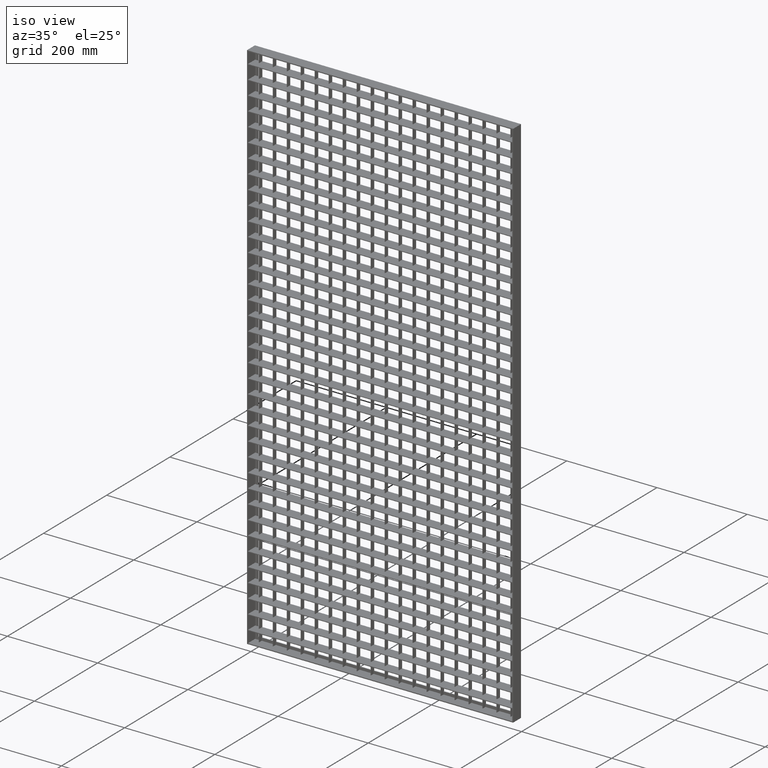
[diagram: clean part render]
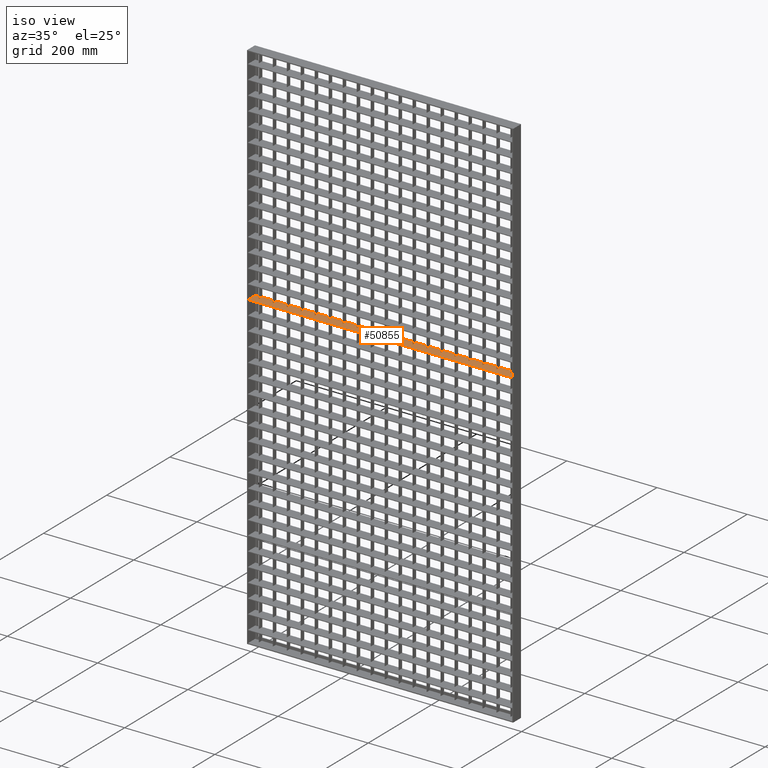
[diagram: same view with one face highlighted and labeled with its STEP entity id]
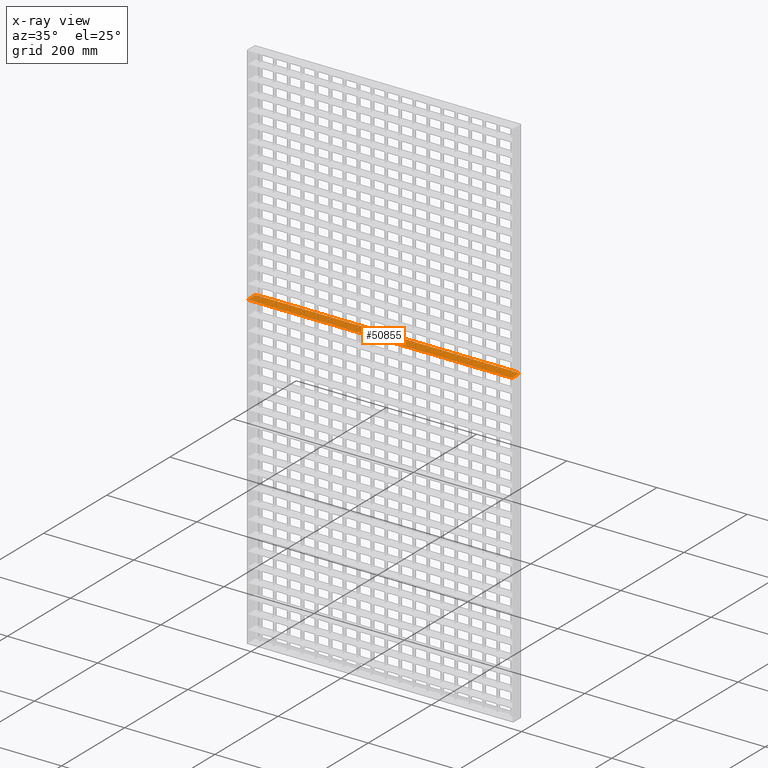
[diagram: x-ray of the same camera — body ghosted, the highlighted face saturated]
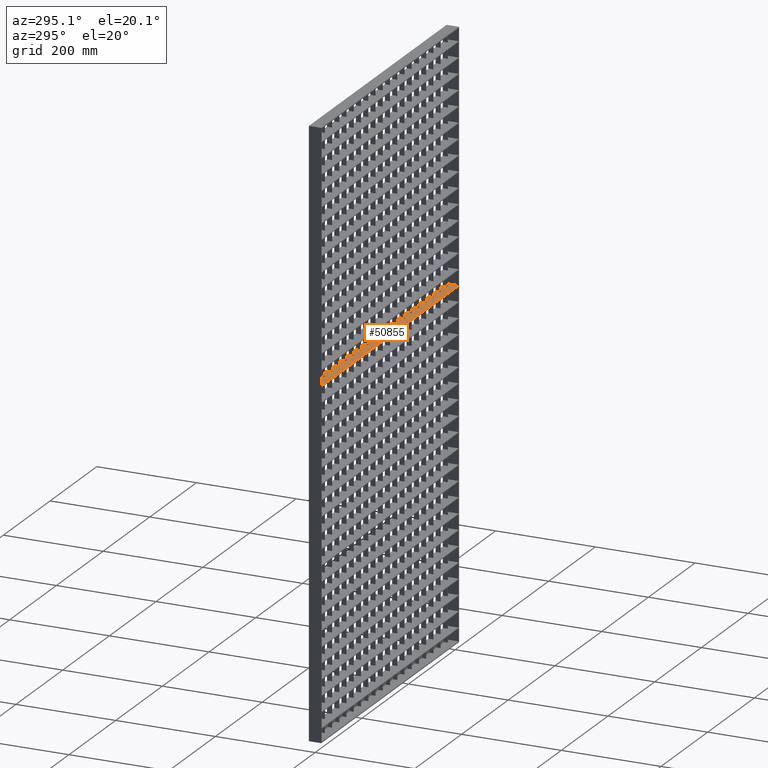
[diagram: same view with one face highlighted and labeled with its STEP entity id]
A machine part, iso view. The second image highlights one B-rep face of the part: STEP entity #50855.
The next image is the same camera in x-ray: the body ghosted, the highlighted face saturated — about 0% of this face is hidden behind the body in this view.
A second angle (auxiliary view) of the same face is appended — the face is thin or edge-on in the first view.
In plain terms, the highlighted planar face has unit normal (0, 0, 1).
Its self-contained STEP definition (entity closure, byte-faithful):
#88 = VERTEX_POINT ( 'NONE', #76579 ) ;
#162 = VERTEX_POINT ( 'NONE', #75208 ) ;
#336 = CARTESIAN_POINT ( 'NONE',  ( 15.49999999999990200, 12.50000000000000000, -499.7500000000001100 ) ) ;
#800 = DIRECTION ( 'NONE',  ( 0.0000000000000000000, -1.000000000000000000, 0.0000000000000000000 ) ) ;
#925 = DIRECTION ( 'NONE',  ( -1.000000000000000000, 4.336808689942014300E-016, 0.0000000000000000000 ) ) ;
#1141 = CARTESIAN_POINT ( 'NONE',  ( 295.5000000000000600, 12.50000000000008300, -499.7500000000001100 ) ) ;
#1150 = VERTEX_POINT ( 'NONE', #26371 ) ;
#1163 = EDGE_CURVE ( 'NONE', #67987, #16419, #25472, .T. ) ;
#1196 = CARTESIAN_POINT ( 'NONE',  ( 419.5000000000001100, 2.500000000000000000, -499.7500000000001100 ) ) ;
#1200 = LINE ( 'NONE', #48355, #42589 ) ;
#1296 = ORIENTED_EDGE ( 'NONE', *, *, #26736, .T. ) ;
#1460 = EDGE_CURVE ( 'NONE', #33713, #77060, #61834, .T. ) ;
#1477 = CARTESIAN_POINT ( 'NONE',  ( 357.5000000000001700, 12.50000000000000000, -499.7500000000002300 ) ) ;
#1503 = ORIENTED_EDGE ( 'NONE', *, *, #21099, .T. ) ;
#1507 = CARTESIAN_POINT ( 'NONE',  ( 77.50000000000001400, 2.500000000000000400, -499.7500000000001100 ) ) ;
#1532 = CARTESIAN_POINT ( 'NONE',  ( 449.5000000000001700, 12.50000000000013100, -499.7500000000001100 ) ) ;
#1583 = DIRECTION ( 'NONE',  ( -1.000000000000000000, 4.336808689942014300E-016, 0.0000000000000000000 ) ) ;
#1758 = CARTESIAN_POINT ( 'NONE',  ( 139.4999999999999400, -12.49999999999982100, -499.7500000000001100 ) ) ;
#1893 = EDGE_CURVE ( 'NONE', #83945, #88269, #67968, .T. ) ;
#1930 = VERTEX_POINT ( 'NONE', #99738 ) ;
#2245 = CARTESIAN_POINT ( 'NONE',  ( 613.0449595727362700, 2.499999999999875700, -499.7500000000001100 ) ) ;
#2548 = VECTOR ( 'NONE', #12147, 1000.000000000000000 ) ;
#2753 = CARTESIAN_POINT ( 'NONE',  ( 588.0000000000002300, 10.50000000000000500, -499.7500000000003400 ) ) ;
#2907 = VECTOR ( 'NONE', #84691, 1000.000000000000000 ) ;
#3217 = EDGE_CURVE ( 'NONE', #34726, #54694, #71489, .T. ) ;
#3611 = EDGE_CURVE ( 'NONE', #90517, #80899, #91445, .T. ) ;
#3633 = ORIENTED_EDGE ( 'NONE', *, *, #37888, .T. ) ;
#4140 = VERTEX_POINT ( 'NONE', #6028 ) ;
#4206 = ORIENTED_EDGE ( 'NONE', *, *, #91945, .F. ) ;
#4368 = LINE ( 'NONE', #63477, #67111 ) ;
#4372 = DIRECTION ( 'NONE',  ( -0.0000000000000000000, 1.000000000000000000, 0.0000000000000000000 ) ) ;
#4393 = LINE ( 'NONE', #25668, #89544 ) ;
#4404 = EDGE_CURVE ( 'NONE', #103595, #69950, #92444, .T. ) ;
#4417 = LINE ( 'NONE', #78578, #100817 ) ;
#4927 = ORIENTED_EDGE ( 'NONE', *, *, #84447, .F. ) ;
#5096 = CARTESIAN_POINT ( 'NONE',  ( 356.5000000000001700, 2.500000000000000400, -499.7500000000001100 ) ) ;
#5190 = ORIENTED_EDGE ( 'NONE', *, *, #3611, .F. ) ;
#5240 = VECTOR ( 'NONE', #5492, 1000.000000000000000 ) ;
#5492 = DIRECTION ( 'NONE',  ( -1.000000000000000000, -3.061616997868383100E-016, 0.0000000000000000000 ) ) ;
#5680 = VERTEX_POINT ( 'NONE', #32550 ) ;
#5840 = VERTEX_POINT ( 'NONE', #43736 ) ;
#5929 = DIRECTION ( 'NONE',  ( -1.000000000000000000, -3.061616997868383100E-016, 0.0000000000000000000 ) ) ;
#6028 = CARTESIAN_POINT ( 'NONE',  ( 201.4999999999999100, 2.500000000000000400, -499.7500000000001100 ) ) ;
#6208 = CARTESIAN_POINT ( 'NONE',  ( 109.4999999999999300, -12.49999999999982100, -499.7500000000001100 ) ) ;
#6213 = ORIENTED_EDGE ( 'NONE', *, *, #17076, .F. ) ;
#6378 = DIRECTION ( 'NONE',  ( 1.000000000000000000, 4.336808689942014300E-016, -0.0000000000000000000 ) ) ;
#6630 = DIRECTION ( 'NONE',  ( 0.0000000000000000000, -1.000000000000000000, 0.0000000000000000000 ) ) ;
#6847 = VERTEX_POINT ( 'NONE', #1532 ) ;
#7033 = LINE ( 'NONE', #35267, #73482 ) ;
#7039 = VECTOR ( 'NONE', #1583, 1000.000000000000000 ) ;
#7052 = ORIENTED_EDGE ( 'NONE', *, *, #12026, .F. ) ;
#7118 = EDGE_CURVE ( 'NONE', #92668, #7993, #60431, .T. ) ;
#7151 = VERTEX_POINT ( 'NONE', #49861 ) ;
#7179 = CARTESIAN_POINT ( 'NONE',  ( 140.4999999999999700, -12.49999999999982100, -499.7500000000001100 ) ) ;
#7450 = CARTESIAN_POINT ( 'NONE',  ( 326.5000000000001100, 12.50000000000000000, -499.7500000000001100 ) ) ;
#7870 = CARTESIAN_POINT ( 'NONE',  ( 202.4999999999999100, -12.49999999999982100, -499.7500000000001100 ) ) ;
#7993 = VERTEX_POINT ( 'NONE', #79960 ) ;
#7998 = VERTEX_POINT ( 'NONE', #1196 ) ;
#8184 = VECTOR ( 'NONE', #97939, 1000.000000000000000 ) ;
#8435 = VECTOR ( 'NONE', #15086, 1000.000000000000000 ) ;
#8462 = CARTESIAN_POINT ( 'NONE',  ( 480.5000000000000600, 2.500000000000000400, -499.7500000000001100 ) ) ;
#8534 = VECTOR ( 'NONE', #43412, 1000.000000000000000 ) ;
#8620 = ORIENTED_EDGE ( 'NONE', *, *, #27825, .T. ) ;
#8904 = CARTESIAN_POINT ( 'NONE',  ( 613.0449595727362700, 12.50000000000018100, -499.7500000000001100 ) ) ;
#8957 = ORIENTED_EDGE ( 'NONE', *, *, #101403, .T. ) ;
#9377 = DIRECTION ( 'NONE',  ( -0.0000000000000000000, 1.000000000000000000, 0.0000000000000000000 ) ) ;
#9599 = DIRECTION ( 'NONE',  ( -0.0000000000000000000, 1.000000000000000000, 0.0000000000000000000 ) ) ;
#9783 = CARTESIAN_POINT ( 'NONE',  ( 7.999999999999992900, 10.50000000000000500, -499.7500000000001100 ) ) ;
#9890 = CARTESIAN_POINT ( 'NONE',  ( 388.5000000000000600, -12.49999999999982100, -499.7500000000001100 ) ) ;
#9917 = CARTESIAN_POINT ( 'NONE',  ( 613.0449595727362700, 2.499999999999929400, -499.7500000000001100 ) ) ;
#10694 = VECTOR ( 'NONE', #50119, 1000.000000000000000 ) ;
#10770 = LINE ( 'NONE', #58847, #74785 ) ;
#10865 = VECTOR ( 'NONE', #16946, 1000.000000000000000 ) ;
#10962 = DIRECTION ( 'NONE',  ( -1.000000000000000000, 4.336808689942014300E-016, 0.0000000000000000000 ) ) ;
#11006 = CARTESIAN_POINT ( 'NONE',  ( 613.0449595727362700, 12.50000000000018100, -499.7500000000001100 ) ) ;
#11146 = VECTOR ( 'NONE', #78067, 1000.000000000000000 ) ;
#11236 = CARTESIAN_POINT ( 'NONE',  ( 512.5000000000002300, 12.50000000000000000, -499.7500000000002300 ) ) ;
#11289 = EDGE_CURVE ( 'NONE', #37539, #15873, #72267, .T. ) ;
#11571 = LINE ( 'NONE', #11006, #59208 ) ;
#11662 = LINE ( 'NONE', #18423, #90609 ) ;
#11805 = CARTESIAN_POINT ( 'NONE',  ( 232.4999999999999400, -12.49999999999982100, -499.7500000000001100 ) ) ;
#12006 = DIRECTION ( 'NONE',  ( -0.0000000000000000000, -1.000000000000000000, 0.0000000000000000000 ) ) ;
#12026 = EDGE_CURVE ( 'NONE', #57651, #94234, #10770, .T. ) ;
#12101 = VECTOR ( 'NONE', #58516, 1000.000000000000000 ) ;
#12147 = DIRECTION ( 'NONE',  ( 0.0000000000000000000, -1.000000000000000000, 0.0000000000000000000 ) ) ;
#12310 = ORIENTED_EDGE ( 'NONE', *, *, #31802, .T. ) ;
#12792 = VECTOR ( 'NONE', #59947, 1000.000000000000000 ) ;
#12810 = ORIENTED_EDGE ( 'NONE', *, *, #67568, .T. ) ;
#12888 = CARTESIAN_POINT ( 'NONE',  ( 170.4999999999999400, 2.499999999999999100, -499.7500000000001100 ) ) ;
#13057 = LINE ( 'NONE', #35279, #95704 ) ;
#13422 = DIRECTION ( 'NONE',  ( -1.000000000000000000, 4.336808689942014300E-016, 0.0000000000000000000 ) ) ;
#13438 = LINE ( 'NONE', #97367, #22176 ) ;
#13447 = ORIENTED_EDGE ( 'NONE', *, *, #1163, .T. ) ;
#13504 = VERTEX_POINT ( 'NONE', #24676 ) ;
#13548 = CARTESIAN_POINT ( 'NONE',  ( 574.5000000000002300, 12.50000000000000000, -499.7500000000002300 ) ) ;
#13762 = LINE ( 'NONE', #25398, #63955 ) ;
#13776 = DIRECTION ( 'NONE',  ( -1.000000000000000000, -3.061616997868383100E-016, 0.0000000000000000000 ) ) ;
#13791 = CARTESIAN_POINT ( 'NONE',  ( 233.5000000000000900, 12.50000000000006600, -499.7500000000001100 ) ) ;
#13904 = EDGE_CURVE ( 'NONE', #14112, #57651, #69308, .T. ) ;
#13954 = VERTEX_POINT ( 'NONE', #13791 ) ;
#14068 = DIRECTION ( 'NONE',  ( 0.0000000000000000000, -1.000000000000000000, 0.0000000000000000000 ) ) ;
#14112 = VERTEX_POINT ( 'NONE', #56483 ) ;
#14296 = CARTESIAN_POINT ( 'NONE',  ( 542.5000000000002300, 12.50000000000016000, -499.7500000000001100 ) ) ;
#14355 = EDGE_CURVE ( 'NONE', #93818, #102245, #22808, .T. ) ;
#14599 = CARTESIAN_POINT ( 'NONE',  ( 573.5000000000001100, 2.500000000000000400, -499.7500000000001100 ) ) ;
#14730 = LINE ( 'NONE', #27431, #20967 ) ;
#14795 = CARTESIAN_POINT ( 'NONE',  ( 201.4999999999999400, 12.50000000000000000, -499.7500000000001100 ) ) ;
#15055 = CARTESIAN_POINT ( 'NONE',  ( 582.0000000000001100, 10.50000000000000500, -499.7500000000004500 ) ) ;
#15086 = DIRECTION ( 'NONE',  ( 0.0000000000000000000, -1.000000000000000000, 0.0000000000000000000 ) ) ;
#15438 = LINE ( 'NONE', #30487, #64226 ) ;
#15748 = DIRECTION ( 'NONE',  ( -1.000000000000000000, -3.061616997868383100E-016, 0.0000000000000000000 ) ) ;
#15873 = VERTEX_POINT ( 'NONE', #101956 ) ;
#15891 = ORIENTED_EDGE ( 'NONE', *, *, #24708, .T. ) ;
#16210 = EDGE_CURVE ( 'NONE', #31259, #35626, #4417, .T. ) ;
#16361 = ORIENTED_EDGE ( 'NONE', *, *, #94720, .T. ) ;
#16419 = VERTEX_POINT ( 'NONE', #72995 ) ;
#16612 = EDGE_CURVE ( 'NONE', #44555, #64524, #70754, .T. ) ;
#16617 = DIRECTION ( 'NONE',  ( -0.0000000000000000000, 1.000000000000000000, 0.0000000000000000000 ) ) ;
#16671 = EDGE_CURVE ( 'NONE', #80899, #26791, #34316, .T. ) ;
#16677 = ORIENTED_EDGE ( 'NONE', *, *, #59960, .F. ) ;
#16809 = DIRECTION ( 'NONE',  ( 0.0000000000000000000, -1.000000000000000000, 0.0000000000000000000 ) ) ;
#16863 = VECTOR ( 'NONE', #52948, 1000.000000000000000 ) ;
#16946 = DIRECTION ( 'NONE',  ( -1.000000000000000000, 4.336808689942014300E-016, 0.0000000000000000000 ) ) ;
#17076 = EDGE_CURVE ( 'NONE', #60674, #93818, #100619, .T. ) ;
#17240 = EDGE_CURVE ( 'NONE', #16419, #73450, #83069, .T. ) ;
#17544 = VERTEX_POINT ( 'NONE', #89537 ) ;
#17597 = ORIENTED_EDGE ( 'NONE', *, *, #56202, .T. ) ;
#17625 = CARTESIAN_POINT ( 'NONE',  ( 450.5000000000001100, 12.50000000000000000, -499.7500000000002300 ) ) ;
#17688 = DIRECTION ( 'NONE',  ( -1.000000000000000000, 4.336808689942014300E-016, 0.0000000000000000000 ) ) ;
#17770 = LINE ( 'NONE', #94699, #5240 ) ;
#17862 = CARTESIAN_POINT ( 'NONE',  ( 170.4999999999999400, 12.50000000000000000, -499.7500000000001100 ) ) ;
#17899 = EDGE_CURVE ( 'NONE', #23229, #37865, #17770, .T. ) ;
#18423 = CARTESIAN_POINT ( 'NONE',  ( 613.0449595727362700, 12.50000000000018100, -499.7500000000001100 ) ) ;
#18546 = LINE ( 'NONE', #7870, #39854 ) ;
#18862 = LINE ( 'NONE', #27879, #76553 ) ;
#18927 = VECTOR ( 'NONE', #54207, 1000.000000000000000 ) ;
#18928 = EDGE_CURVE ( 'NONE', #53024, #92668, #1200, .T. ) ;
#19044 = DIRECTION ( 'NONE',  ( -0.0000000000000000000, 1.000000000000000000, 0.0000000000000000000 ) ) ;
#19209 = ORIENTED_EDGE ( 'NONE', *, *, #34361, .T. ) ;
#19246 = CARTESIAN_POINT ( 'NONE',  ( 613.0449595727362700, 12.50000000000018100, -499.7500000000001100 ) ) ;
#19488 = VERTEX_POINT ( 'NONE', #88339 ) ;
#19605 = LINE ( 'NONE', #73730, #7039 ) ;
#19785 = LINE ( 'NONE', #79075, #57390 ) ;
#20048 = EDGE_CURVE ( 'NONE', #57692, #94707, #56987, .T. ) ;
#20116 = EDGE_CURVE ( 'NONE', #57692, #88614, #77068, .T. ) ;
#20294 = CARTESIAN_POINT ( 'NONE',  ( 574.5000000000002300, 2.500000000000000000, -499.7500000000001100 ) ) ;
#20967 = VECTOR ( 'NONE', #52668, 1000.000000000000000 ) ;
#21099 = EDGE_CURVE ( 'NONE', #71629, #19488, #73081, .T. ) ;
#21185 = LINE ( 'NONE', #102591, #38750 ) ;
#21823 = CARTESIAN_POINT ( 'NONE',  ( 613.0449595727362700, 12.50000000000018100, -499.7500000000001100 ) ) ;
#22027 = DIRECTION ( 'NONE',  ( 1.000000000000000000, 4.336808689942014300E-016, -0.0000000000000000000 ) ) ;
#22081 = LINE ( 'NONE', #25757, #82176 ) ;
#22094 = CARTESIAN_POINT ( 'NONE',  ( 2.000000000000223800, -12.50000000000000700, -499.7500000000001100 ) ) ;
#22176 = VECTOR ( 'NONE', #25253, 1000.000000000000000 ) ;
#22185 = DIRECTION ( 'NONE',  ( 1.000000000000000000, 4.336808689942014300E-016, -0.0000000000000000000 ) ) ;
#22459 = CARTESIAN_POINT ( 'NONE',  ( 108.4999999999999300, -12.49999999999982100, -499.7500000000001100 ) ) ;
#22808 = LINE ( 'NONE', #26648, #12792 ) ;
#23018 = EDGE_CURVE ( 'NONE', #34619, #7998, #58778, .T. ) ;
#23022 = CARTESIAN_POINT ( 'NONE',  ( 2.000000000000002700, 10.50000000000000500, -499.7500000000001100 ) ) ;
#23038 = VECTOR ( 'NONE', #800, 1000.000000000000000 ) ;
#23229 = VERTEX_POINT ( 'NONE', #49708 ) ;
#23342 = VERTEX_POINT ( 'NONE', #90624 ) ;
#23374 = VECTOR ( 'NONE', #83225, 1000.000000000000000 ) ;
#23522 = ORIENTED_EDGE ( 'NONE', *, *, #90747, .T. ) ;
#23866 = CARTESIAN_POINT ( 'NONE',  ( 573.5000000000001100, 12.50000000000016900, -499.7500000000001100 ) ) ;
#24027 = ORIENTED_EDGE ( 'NONE', *, *, #61811, .F. ) ;
#24429 = EDGE_CURVE ( 'NONE', #102245, #86234, #96802, .T. ) ;
#24676 = CARTESIAN_POINT ( 'NONE',  ( 46.49999999999992900, 12.50000000000000000, -499.7500000000001100 ) ) ;
#24708 = EDGE_CURVE ( 'NONE', #46589, #102213, #11571, .T. ) ;
#24778 = LINE ( 'NONE', #99756, #97287 ) ;
#25117 = LINE ( 'NONE', #102131, #18927 ) ;
#25253 = DIRECTION ( 'NONE',  ( -0.0000000000000000000, 1.000000000000000000, 0.0000000000000000000 ) ) ;
#25398 = CARTESIAN_POINT ( 'NONE',  ( 78.49999999999990100, -12.49999999999982100, -499.7500000000001100 ) ) ;
#25405 = CARTESIAN_POINT ( 'NONE',  ( 139.4999999999999400, 12.50000000000000000, -499.7500000000001100 ) ) ;
#25429 = VERTEX_POINT ( 'NONE', #74271 ) ;
#25472 = LINE ( 'NONE', #2245, #31705 ) ;
#25668 = CARTESIAN_POINT ( 'NONE',  ( 264.4999999999999400, -12.49999999999982100, -499.7500000000001100 ) ) ;
#25757 = CARTESIAN_POINT ( 'NONE',  ( 201.4999999999999100, -12.49999999999982100, -499.7500000000001100 ) ) ;
#26112 = VERTEX_POINT ( 'NONE', #78125 ) ;
#26252 = VECTOR ( 'NONE', #13776, 1000.000000000000000 ) ;
#26371 = CARTESIAN_POINT ( 'NONE',  ( 543.5000000000001100, 2.500000000000000000, -499.7500000000001100 ) ) ;
#26548 = EDGE_CURVE ( 'NONE', #33713, #36396, #93720, .T. ) ;
#26579 = ORIENTED_EDGE ( 'NONE', *, *, #28122, .T. ) ;
#26648 = CARTESIAN_POINT ( 'NONE',  ( 613.0449595727362700, 2.500000000000205200, -499.7500000000001100 ) ) ;
#26736 = EDGE_CURVE ( 'NONE', #51841, #37539, #19785, .T. ) ;
#26791 = VERTEX_POINT ( 'NONE', #103243 ) ;
#26819 = DIRECTION ( 'NONE',  ( 0.0000000000000000000, -1.000000000000000000, 0.0000000000000000000 ) ) ;
#26874 = EDGE_CURVE ( 'NONE', #71449, #47499, #71172, .T. ) ;
#26904 = LINE ( 'NONE', #95718, #35512 ) ;
#26951 = DIRECTION ( 'NONE',  ( 0.0000000000000000000, -1.000000000000000000, 0.0000000000000000000 ) ) ;
#26983 = VERTEX_POINT ( 'NONE', #90594 ) ;
#27283 = DIRECTION ( 'NONE',  ( -1.000000000000000000, 0.0000000000000000000, 0.0000000000000000000 ) ) ;
#27298 = VERTEX_POINT ( 'NONE', #28929 ) ;
#27431 = CARTESIAN_POINT ( 'NONE',  ( 613.0449595727362700, 12.50000000000018100, -499.7500000000001100 ) ) ;
#27570 = ORIENTED_EDGE ( 'NONE', *, *, #90365, .T. ) ;
#27825 = EDGE_CURVE ( 'NONE', #94707, #71237, #49624, .T. ) ;
#27879 = CARTESIAN_POINT ( 'NONE',  ( 511.5000000000000600, -12.49999999999982100, -499.7500000000001100 ) ) ;
#28122 = EDGE_CURVE ( 'NONE', #74196, #101007, #45796, .T. ) ;
#28236 = CARTESIAN_POINT ( 'NONE',  ( 46.49999999999998600, 2.499999999999999100, -499.7500000000001100 ) ) ;
#28271 = VECTOR ( 'NONE', #94150, 1000.000000000000000 ) ;
#28642 = EDGE_CURVE ( 'NONE', #47499, #71629, #29499, .T. ) ;
#28648 = CARTESIAN_POINT ( 'NONE',  ( 16.50000000000007100, 12.49999999999999800, -499.7500000000001100 ) ) ;
#28792 = EDGE_CURVE ( 'NONE', #19488, #88, #45717, .T. ) ;
#28929 = CARTESIAN_POINT ( 'NONE',  ( 7.999999999999994700, 12.50000000000000500, -499.7500000000001100 ) ) ;
#28950 = ORIENTED_EDGE ( 'NONE', *, *, #75724, .F. ) ;
#29036 = VERTEX_POINT ( 'NONE', #38500 ) ;
#29132 = ORIENTED_EDGE ( 'NONE', *, *, #75062, .T. ) ;
#29499 = LINE ( 'NONE', #9890, #48340 ) ;
#29703 = EDGE_CURVE ( 'NONE', #29998, #5840, #51608, .T. ) ;
#29998 = VERTEX_POINT ( 'NONE', #89794 ) ;
#30487 = CARTESIAN_POINT ( 'NONE',  ( 357.5000000000001700, -12.49999999999982100, -499.7500000000001100 ) ) ;
#30489 = ORIENTED_EDGE ( 'NONE', *, *, #33076, .T. ) ;
#30580 = LINE ( 'NONE', #48802, #23038 ) ;
#30731 = ORIENTED_EDGE ( 'NONE', *, *, #61118, .F. ) ;
#31259 = VERTEX_POINT ( 'NONE', #28236 ) ;
#31274 = DIRECTION ( 'NONE',  ( -1.000000000000000000, 4.336808689942014300E-016, 0.0000000000000000000 ) ) ;
#31462 = CARTESIAN_POINT ( 'NONE',  ( 613.0449595727362700, 12.50000000000018100, -499.7500000000001100 ) ) ;
#31518 = VECTOR ( 'NONE', #66209, 1000.000000000000000 ) ;
#31555 = ORIENTED_EDGE ( 'NONE', *, *, #16612, .T. ) ;
#31665 = ORIENTED_EDGE ( 'NONE', *, *, #18928, .T. ) ;
#31705 = VECTOR ( 'NONE', #58983, 1000.000000000000000 ) ;
#31802 = EDGE_CURVE ( 'NONE', #49885, #53024, #24778, .T. ) ;
#31814 = CARTESIAN_POINT ( 'NONE',  ( 77.49999999999992900, 12.50000000000000000, -499.7500000000001100 ) ) ;
#32045 = EDGE_CURVE ( 'NONE', #56022, #25429, #64842, .T. ) ;
#32151 = EDGE_CURVE ( 'NONE', #53459, #71449, #78641, .T. ) ;
#32251 = DIRECTION ( 'NONE',  ( -1.000000000000000000, -3.061616997868383100E-016, 0.0000000000000000000 ) ) ;
#32388 = CARTESIAN_POINT ( 'NONE',  ( 613.0449595727362700, 2.499999999999889400, -499.7500000000001100 ) ) ;
#32536 = DIRECTION ( 'NONE',  ( 0.0000000000000000000, -1.000000000000000000, 0.0000000000000000000 ) ) ;
#32550 = CARTESIAN_POINT ( 'NONE',  ( 78.49999999999990100, 2.500000000000000400, -499.7500000000001100 ) ) ;
#32719 = ORIENTED_EDGE ( 'NONE', *, *, #41987, .T. ) ;
#33076 = EDGE_CURVE ( 'NONE', #1150, #55874, #39580, .T. ) ;
#33549 = ORIENTED_EDGE ( 'NONE', *, *, #68890, .F. ) ;
#33617 = CARTESIAN_POINT ( 'NONE',  ( 16.49999999999995700, -12.49999999999982100, -499.7500000000001100 ) ) ;
#33687 = LINE ( 'NONE', #48678, #85052 ) ;
#33713 = VERTEX_POINT ( 'NONE', #80980 ) ;
#34067 = EDGE_CURVE ( 'NONE', #26983, #1150, #78155, .T. ) ;
#34188 = VERTEX_POINT ( 'NONE', #336 ) ;
#34206 = LINE ( 'NONE', #53587, #78105 ) ;
#34316 = LINE ( 'NONE', #68754, #71946 ) ;
#34334 = CARTESIAN_POINT ( 'NONE',  ( 47.49999999999987200, -12.49999999999982100, -499.7500000000001100 ) ) ;
#34361 = EDGE_CURVE ( 'NONE', #92931, #13954, #85630, .T. ) ;
#34619 = VERTEX_POINT ( 'NONE', #45451 ) ;
#34726 = VERTEX_POINT ( 'NONE', #14599 ) ;
#34924 = DIRECTION ( 'NONE',  ( -0.0000000000000000000, 1.000000000000000000, 0.0000000000000000000 ) ) ;
#34976 = VERTEX_POINT ( 'NONE', #40818 ) ;
#35208 = CARTESIAN_POINT ( 'NONE',  ( 263.4999999999999400, 12.50000000000000000, -499.7500000000001100 ) ) ;
#35230 = LINE ( 'NONE', #8904, #94096 ) ;
#35267 = CARTESIAN_POINT ( 'NONE',  ( 171.4999999999999400, -12.49999999999982100, -499.7500000000001100 ) ) ;
#35279 = CARTESIAN_POINT ( 'NONE',  ( 294.4999999999999400, -12.49999999999982100, -499.7500000000001100 ) ) ;
#35282 = LINE ( 'NONE', #23022, #81717 ) ;
#35404 = ORIENTED_EDGE ( 'NONE', *, *, #28792, .T. ) ;
#35502 = VERTEX_POINT ( 'NONE', #31814 ) ;
#35512 = VECTOR ( 'NONE', #40770, 1000.000000000000000 ) ;
#35575 = LINE ( 'NONE', #74955, #79473 ) ;
#35626 = VERTEX_POINT ( 'NONE', #81531 ) ;
#35960 = EDGE_CURVE ( 'NONE', #5680, #36396, #13762, .T. ) ;
#36333 = CARTESIAN_POINT ( 'NONE',  ( 140.4999999999999700, 2.500000000000000400, -499.7500000000001100 ) ) ;
#36396 = VERTEX_POINT ( 'NONE', #103639 ) ;
#37247 = ORIENTED_EDGE ( 'NONE', *, *, #26548, .T. ) ;
#37291 = ORIENTED_EDGE ( 'NONE', *, *, #89215, .F. ) ;
#37453 = ORIENTED_EDGE ( 'NONE', *, *, #1460, .F. ) ;
#37539 = VERTEX_POINT ( 'NONE', #100614 ) ;
#37865 = VERTEX_POINT ( 'NONE', #7450 ) ;
#37888 = EDGE_CURVE ( 'NONE', #101007, #49885, #13438, .T. ) ;
#38030 = ORIENTED_EDGE ( 'NONE', *, *, #68951, .T. ) ;
#38391 = EDGE_CURVE ( 'NONE', #46589, #4140, #22081, .T. ) ;
#38500 = CARTESIAN_POINT ( 'NONE',  ( 511.5000000000000600, 12.50000000000014900, -499.7500000000001100 ) ) ;
#38669 = CARTESIAN_POINT ( 'NONE',  ( 357.5000000000001700, 2.500000000000000000, -499.7500000000001100 ) ) ;
#38750 = VECTOR ( 'NONE', #86843, 1000.000000000000000 ) ;
#38862 = EDGE_CURVE ( 'NONE', #17544, #1930, #89573, .T. ) ;
#39504 = CARTESIAN_POINT ( 'NONE',  ( 233.4999999999999400, -12.49999999999982100, -499.7500000000001100 ) ) ;
#39545 = DIRECTION ( 'NONE',  ( -1.000000000000000000, -3.061616997868383100E-016, 0.0000000000000000000 ) ) ;
#39580 = LINE ( 'NONE', #44621, #74687 ) ;
#39703 = CARTESIAN_POINT ( 'NONE',  ( 171.4999999999999400, 2.500000000000000400, -499.7500000000001100 ) ) ;
#39848 = EDGE_CURVE ( 'NONE', #13504, #53949, #11662, .T. ) ;
#39854 = VECTOR ( 'NONE', #16617, 1000.000000000000000 ) ;
#39858 = VECTOR ( 'NONE', #40259, 1000.000000000000000 ) ;
#40170 = VERTEX_POINT ( 'NONE', #39703 ) ;
#40259 = DIRECTION ( 'NONE',  ( -1.000000000000000000, -3.061616997868383100E-016, 0.0000000000000000000 ) ) ;
#40770 = DIRECTION ( 'NONE',  ( 1.000000000000000000, 4.336808689942014300E-016, -0.0000000000000000000 ) ) ;
#40818 = CARTESIAN_POINT ( 'NONE',  ( 202.4999999999999100, 2.500000000000000400, -499.7500000000001100 ) ) ;
#41199 = CARTESIAN_POINT ( 'NONE',  ( 418.5000000000001700, 12.50000000000012300, -499.7500000000001100 ) ) ;
#41680 = LINE ( 'NONE', #49514, #100512 ) ;
#41987 = EDGE_CURVE ( 'NONE', #54694, #26983, #4368, .T. ) ;
#42048 = CARTESIAN_POINT ( 'NONE',  ( 15.49999999999984700, -12.49999999999982100, -499.7500000000001100 ) ) ;
#42103 = EDGE_CURVE ( 'NONE', #34188, #56022, #72102, .T. ) ;
#42203 = LINE ( 'NONE', #93039, #23374 ) ;
#42282 = EDGE_CURVE ( 'NONE', #13504, #31259, #35575, .T. ) ;
#42349 = CARTESIAN_POINT ( 'NONE',  ( 588.0000000000001100, -12.49999999999982100, -499.7500000000001100 ) ) ;
#42445 = VECTOR ( 'NONE', #6378, 1000.000000000000000 ) ;
#42557 = VECTOR ( 'NONE', #17688, 1000.000000000000000 ) ;
#42589 = VECTOR ( 'NONE', #32536, 1000.000000000000000 ) ;
#42962 = LINE ( 'NONE', #31462, #71825 ) ;
#43122 = VECTOR ( 'NONE', #77762, 1000.000000000000000 ) ;
#43273 = EDGE_CURVE ( 'NONE', #7993, #6847, #60531, .T. ) ;
#43412 = DIRECTION ( 'NONE',  ( -1.000000000000000000, -3.061616997868383100E-016, 0.0000000000000000000 ) ) ;
#43736 = CARTESIAN_POINT ( 'NONE',  ( 109.5000000000001600, 12.50000000000002700, -499.7500000000001100 ) ) ;
#43891 = CARTESIAN_POINT ( 'NONE',  ( 2.000000000000002700, 10.50000000000000500, -499.7500000000001100 ) ) ;
#44141 = ORIENTED_EDGE ( 'NONE', *, *, #38391, .F. ) ;
#44271 = ORIENTED_EDGE ( 'NONE', *, *, #16671, .F. ) ;
#44555 = VERTEX_POINT ( 'NONE', #43891 ) ;
#44621 = CARTESIAN_POINT ( 'NONE',  ( 613.0449595727362700, 2.499999999999969400, -499.7500000000001100 ) ) ;
#44812 = VECTOR ( 'NONE', #32251, 1000.000000000000000 ) ;
#45298 = DIRECTION ( 'NONE',  ( 1.000000000000000000, 0.0000000000000000000, -0.0000000000000000000 ) ) ;
#45315 = LINE ( 'NONE', #103198, #82875 ) ;
#45451 = CARTESIAN_POINT ( 'NONE',  ( 419.5000000000001100, 12.50000000000000000, -499.7500000000002300 ) ) ;
#45717 = LINE ( 'NONE', #51906, #16863 ) ;
#45796 = LINE ( 'NONE', #97579, #8184 ) ;
#45853 = DIRECTION ( 'NONE',  ( -1.000000000000000000, 0.0000000000000000000, 0.0000000000000000000 ) ) ;
#45887 = ORIENTED_EDGE ( 'NONE', *, *, #14355, .F. ) ;
#46386 = VECTOR ( 'NONE', #22185, 1000.000000000000000 ) ;
#46589 = VERTEX_POINT ( 'NONE', #14795 ) ;
#46608 = EDGE_CURVE ( 'NONE', #60674, #5840, #56440, .T. ) ;
#46823 = DIRECTION ( 'NONE',  ( -0.0000000000000000000, 1.000000000000000000, 0.0000000000000000000 ) ) ;
#46858 = ORIENTED_EDGE ( 'NONE', *, *, #34067, .T. ) ;
#47015 = ORIENTED_EDGE ( 'NONE', *, *, #42103, .F. ) ;
#47120 = ORIENTED_EDGE ( 'NONE', *, *, #46608, .T. ) ;
#47132 = ORIENTED_EDGE ( 'NONE', *, *, #7118, .T. ) ;
#47242 = CARTESIAN_POINT ( 'NONE',  ( 418.5000000000001100, -12.49999999999982100, -499.7500000000001100 ) ) ;
#47304 = EDGE_CURVE ( 'NONE', #29036, #57492, #33687, .T. ) ;
#47499 = VERTEX_POINT ( 'NONE', #90866 ) ;
#48340 = VECTOR ( 'NONE', #90410, 1000.000000000000000 ) ;
#48355 = CARTESIAN_POINT ( 'NONE',  ( 450.5000000000001100, -12.49999999999982100, -499.7500000000001100 ) ) ;
#48669 = VECTOR ( 'NONE', #26819, 1000.000000000000000 ) ;
#48678 = CARTESIAN_POINT ( 'NONE',  ( 613.0449595727362700, 12.50000000000018100, -499.7500000000001100 ) ) ;
#48702 = EDGE_CURVE ( 'NONE', #26791, #13954, #94671, .T. ) ;
#48716 = ORIENTED_EDGE ( 'NONE', *, *, #76626, .T. ) ;
#48796 = CARTESIAN_POINT ( 'NONE',  ( 263.4999999999999400, -12.49999999999982100, -499.7500000000001100 ) ) ;
#48802 = CARTESIAN_POINT ( 'NONE',  ( 77.49999999999990100, -12.49999999999982100, -499.7500000000001100 ) ) ;
#48953 = DIRECTION ( 'NONE',  ( 0.0000000000000000000, -1.000000000000000000, 0.0000000000000000000 ) ) ;
#49456 = ORIENTED_EDGE ( 'NONE', *, *, #20048, .T. ) ;
#49514 = CARTESIAN_POINT ( 'NONE',  ( 613.0449595727362700, 12.50000000000018100, -499.7500000000001100 ) ) ;
#49624 = LINE ( 'NONE', #69388, #28271 ) ;
#49708 = CARTESIAN_POINT ( 'NONE',  ( 356.5000000000002800, 12.50000000000010300, -499.7500000000001100 ) ) ;
#49861 = CARTESIAN_POINT ( 'NONE',  ( 7.999999999999992900, 10.50000000000000500, -499.7500000000001100 ) ) ;
#49885 = VERTEX_POINT ( 'NONE', #95627 ) ;
#49998 = DIRECTION ( 'NONE',  ( -1.000000000000000000, -3.061616997868383100E-016, 0.0000000000000000000 ) ) ;
#50048 = LINE ( 'NONE', #34334, #62616 ) ;
#50119 = DIRECTION ( 'NONE',  ( 0.0000000000000000000, -1.000000000000000000, 0.0000000000000000000 ) ) ;
#50492 = DIRECTION ( 'NONE',  ( -0.0000000000000000000, 1.000000000000000000, 0.0000000000000000000 ) ) ;
#50645 = CARTESIAN_POINT ( 'NONE',  ( 588.0000000000001100, -12.50000000000000700, -499.7500000000001100 ) ) ;
#50855 = ADVANCED_FACE ( 'NONE', ( #87997 ), #92891, .T. ) ;
#50991 = ORIENTED_EDGE ( 'NONE', *, *, #68795, .F. ) ;
#51608 = LINE ( 'NONE', #6208, #64171 ) ;
#51773 = VECTOR ( 'NONE', #102782, 1000.000000000000000 ) ;
#51841 = VERTEX_POINT ( 'NONE', #11236 ) ;
#51864 = DIRECTION ( 'NONE',  ( -1.000000000000000000, -3.061616997868383100E-016, 0.0000000000000000000 ) ) ;
#51906 = CARTESIAN_POINT ( 'NONE',  ( 387.5000000000000600, -12.49999999999982100, -499.7500000000001100 ) ) ;
#52338 = CARTESIAN_POINT ( 'NONE',  ( 356.5000000000001700, -12.49999999999982100, -499.7500000000001100 ) ) ;
#52668 = DIRECTION ( 'NONE',  ( -1.000000000000000000, -3.061616997868383100E-016, 0.0000000000000000000 ) ) ;
#52707 = VECTOR ( 'NONE', #60230, 1000.000000000000000 ) ;
#52742 = VERTEX_POINT ( 'NONE', #38669 ) ;
#52868 = CARTESIAN_POINT ( 'NONE',  ( 582.0000000000002300, 12.50000000000000500, -499.7500000000003400 ) ) ;
#52941 = CARTESIAN_POINT ( 'NONE',  ( 419.5000000000001100, -12.49999999999982100, -499.7500000000001100 ) ) ;
#52948 = DIRECTION ( 'NONE',  ( -0.0000000000000000000, 1.000000000000000000, 0.0000000000000000000 ) ) ;
#53024 = VERTEX_POINT ( 'NONE', #17625 ) ;
#53307 = ORIENTED_EDGE ( 'NONE', *, *, #20116, .F. ) ;
#53360 = CARTESIAN_POINT ( 'NONE',  ( 613.0449595727362700, -12.49999999999982100, -499.7500000000001100 ) ) ;
#53459 = VERTEX_POINT ( 'NONE', #53672 ) ;
#53587 = CARTESIAN_POINT ( 'NONE',  ( 326.5000000000001100, -12.49999999999982100, -499.7500000000001100 ) ) ;
#53592 = CARTESIAN_POINT ( 'NONE',  ( 326.5000000000001100, 2.500000000000000000, -499.7500000000001100 ) ) ;
#53609 = ORIENTED_EDGE ( 'NONE', *, *, #71555, .T. ) ;
#53672 = CARTESIAN_POINT ( 'NONE',  ( 418.5000000000001100, 2.500000000000000400, -499.7500000000001100 ) ) ;
#53738 = CARTESIAN_POINT ( 'NONE',  ( 613.0449595727362700, 2.500000000000137700, -499.7500000000001100 ) ) ;
#53805 = ORIENTED_EDGE ( 'NONE', *, *, #26874, .T. ) ;
#53854 = ORIENTED_EDGE ( 'NONE', *, *, #28642, .T. ) ;
#53949 = VERTEX_POINT ( 'NONE', #28648 ) ;
#54207 = DIRECTION ( 'NONE',  ( -1.000000000000000000, -3.061616997868383100E-016, 0.0000000000000000000 ) ) ;
#54243 = EDGE_CURVE ( 'NONE', #7998, #53459, #94857, .T. ) ;
#54458 = VECTOR ( 'NONE', #12006, 1000.000000000000000 ) ;
#54530 = ORIENTED_EDGE ( 'NONE', *, *, #42282, .F. ) ;
#54694 = VERTEX_POINT ( 'NONE', #23866 ) ;
#55156 = CARTESIAN_POINT ( 'NONE',  ( 613.0449595727362700, 2.499999999999903200, -499.7500000000001100 ) ) ;
#55874 = VERTEX_POINT ( 'NONE', #62915 ) ;
#56022 = VERTEX_POINT ( 'NONE', #72689 ) ;
#56141 = VECTOR ( 'NONE', #925, 1000.000000000000000 ) ;
#56202 = EDGE_CURVE ( 'NONE', #37865, #67987, #34206, .T. ) ;
#56440 = LINE ( 'NONE', #21823, #26252 ) ;
#56453 = VECTOR ( 'NONE', #9377, 1000.000000000000000 ) ;
#56483 = CARTESIAN_POINT ( 'NONE',  ( 294.4999999999999400, 2.499999999999999100, -499.7500000000001100 ) ) ;
#56701 = VECTOR ( 'NONE', #94625, 1000.000000000000000 ) ;
#56954 = ORIENTED_EDGE ( 'NONE', *, *, #70589, .T. ) ;
#56987 = LINE ( 'NONE', #66936, #83292 ) ;
#57390 = VECTOR ( 'NONE', #6630, 1000.000000000000000 ) ;
#57492 = VERTEX_POINT ( 'NONE', #95868 ) ;
#57651 = VERTEX_POINT ( 'NONE', #72822 ) ;
#57692 = VERTEX_POINT ( 'NONE', #2753 ) ;
#58308 = ORIENTED_EDGE ( 'NONE', *, *, #54243, .T. ) ;
#58396 = ORIENTED_EDGE ( 'NONE', *, *, #23018, .T. ) ;
#58516 = DIRECTION ( 'NONE',  ( -0.0000000000000000000, 1.000000000000000000, 0.0000000000000000000 ) ) ;
#58778 = LINE ( 'NONE', #52941, #11146 ) ;
#58847 = CARTESIAN_POINT ( 'NONE',  ( 295.4999999999999400, -12.49999999999982100, -499.7500000000001100 ) ) ;
#58938 = CARTESIAN_POINT ( 'NONE',  ( 140.5000000000000600, 12.50000000000003700, -499.7500000000001100 ) ) ;
#58983 = DIRECTION ( 'NONE',  ( -1.000000000000000000, 4.336808689942014300E-016, 0.0000000000000000000 ) ) ;
#59061 = ORIENTED_EDGE ( 'NONE', *, *, #29703, .F. ) ;
#59107 = EDGE_CURVE ( 'NONE', #83945, #86234, #25117, .T. ) ;
#59208 = VECTOR ( 'NONE', #98509, 1000.000000000000000 ) ;
#59315 = VECTOR ( 'NONE', #100904, 1000.000000000000000 ) ;
#59528 = VECTOR ( 'NONE', #82276, 1000.000000000000000 ) ;
#59807 = CARTESIAN_POINT ( 'NONE',  ( 388.5000000000000600, 2.500000000000000000, -499.7500000000001100 ) ) ;
#59880 = CARTESIAN_POINT ( 'NONE',  ( 325.5000000000001100, -12.49999999999982100, -499.7500000000001100 ) ) ;
#59902 = ORIENTED_EDGE ( 'NONE', *, *, #97847, .F. ) ;
#59947 = DIRECTION ( 'NONE',  ( 1.000000000000000000, 4.336808689942014300E-016, -0.0000000000000000000 ) ) ;
#59960 = EDGE_CURVE ( 'NONE', #92931, #162, #92572, .T. ) ;
#60230 = DIRECTION ( 'NONE',  ( -0.0000000000000000000, 1.000000000000000000, 0.0000000000000000000 ) ) ;
#60381 = CARTESIAN_POINT ( 'NONE',  ( 481.5000000000000600, 2.500000000000000000, -499.7500000000001100 ) ) ;
#60431 = LINE ( 'NONE', #9917, #99130 ) ;
#60531 = LINE ( 'NONE', #73706, #103057 ) ;
#60674 = VERTEX_POINT ( 'NONE', #25405 ) ;
#61116 = ORIENTED_EDGE ( 'NONE', *, *, #16210, .F. ) ;
#61118 = EDGE_CURVE ( 'NONE', #34976, #26112, #18546, .T. ) ;
#61214 = LINE ( 'NONE', #71807, #39858 ) ;
#61364 = EDGE_CURVE ( 'NONE', #88, #76032, #14730, .T. ) ;
#61811 = EDGE_CURVE ( 'NONE', #25429, #53949, #87240, .T. ) ;
#61834 = LINE ( 'NONE', #22459, #59315 ) ;
#61975 = EDGE_LOOP ( 'NONE', ( #12810, #74182, #96236, #101444, #32719, #46858, #30489, #23522, #91473, #1296, #79700, #53609, #96896, #77905, #26579, #3633, #12310, #31665, #47132, #85306, #16361, #58396, #58308, #83181, #53805, #53854, #1503, #35404, #98600, #56954, #48716, #38030, #82034, #17597, #13447, #97118, #103552, #7052, #91388, #37291, #82352, #33549, #50991, #16677, #19209, #84096, #44271, #5190, #8957, #30731, #28950, #44141, #15891, #59902, #93557, #81920, #72776, #75758, #45887, #6213, #47120, #59061, #4206, #37453, #37247, #74296, #4927, #67652, #63070, #99497, #61116, #54530, #74749, #24027, #73584, #47015, #92143, #27570, #29132, #31555, #62538, #53307, #49456, #8620 ) ) ;
#62127 = EDGE_CURVE ( 'NONE', #35502, #86077, #97240, .T. ) ;
#62538 = ORIENTED_EDGE ( 'NONE', *, *, #71289, .F. ) ;
#62616 = VECTOR ( 'NONE', #50492, 1000.000000000000000 ) ;
#62915 = CARTESIAN_POINT ( 'NONE',  ( 542.5000000000002300, 2.500000000000000400, -499.7500000000001100 ) ) ;
#63070 = ORIENTED_EDGE ( 'NONE', *, *, #62127, .T. ) ;
#63083 = CARTESIAN_POINT ( 'NONE',  ( 481.5000000000000600, -12.49999999999982100, -499.7500000000001100 ) ) ;
#63330 = CARTESIAN_POINT ( 'NONE',  ( 450.5000000000001100, 2.500000000000000000, -499.7500000000001100 ) ) ;
#63477 = CARTESIAN_POINT ( 'NONE',  ( 613.0449595727362700, 12.50000000000018100, -499.7500000000001100 ) ) ;
#63654 = LINE ( 'NONE', #63083, #8435 ) ;
#63857 = LINE ( 'NONE', #98586, #103890 ) ;
#63955 = VECTOR ( 'NONE', #73093, 1000.000000000000000 ) ;
#64171 = VECTOR ( 'NONE', #46823, 1000.000000000000000 ) ;
#64226 = VECTOR ( 'NONE', #14068, 1000.000000000000000 ) ;
#64288 = CARTESIAN_POINT ( 'NONE',  ( 613.0449595727362700, 2.499999999999956900, -499.7500000000001100 ) ) ;
#64405 = DIRECTION ( 'NONE',  ( -0.0000000000000000000, 1.000000000000000000, 0.0000000000000000000 ) ) ;
#64524 = VERTEX_POINT ( 'NONE', #22094 ) ;
#64842 = LINE ( 'NONE', #77693, #102353 ) ;
#65292 = DIRECTION ( 'NONE',  ( -1.000000000000000000, -3.061616997868383100E-016, 0.0000000000000000000 ) ) ;
#65808 = EDGE_CURVE ( 'NONE', #84140, #51841, #35230, .T. ) ;
#66209 = DIRECTION ( 'NONE',  ( -8.673617379884036500E-016, -1.000000000000000000, 0.0000000000000000000 ) ) ;
#66869 = VECTOR ( 'NONE', #16809, 1000.000000000000000 ) ;
#66936 = CARTESIAN_POINT ( 'NONE',  ( 295.0000000000000600, 10.50000000000000500, -499.7500000000001100 ) ) ;
#67111 = VECTOR ( 'NONE', #95940, 1000.000000000000000 ) ;
#67384 = DIRECTION ( 'NONE',  ( 1.000000000000000000, 4.336808689942014300E-016, -0.0000000000000000000 ) ) ;
#67564 = DIRECTION ( 'NONE',  ( 0.0000000000000000000, -1.000000000000000000, 0.0000000000000000000 ) ) ;
#67568 = EDGE_CURVE ( 'NONE', #71237, #103595, #81148, .T. ) ;
#67652 = ORIENTED_EDGE ( 'NONE', *, *, #94212, .F. ) ;
#67968 = LINE ( 'NONE', #83320, #72964 ) ;
#67987 = VERTEX_POINT ( 'NONE', #53592 ) ;
#68352 = VECTOR ( 'NONE', #65292, 1000.000000000000000 ) ;
#68754 = CARTESIAN_POINT ( 'NONE',  ( 613.0449595727362700, 2.500000000000165200, -499.7500000000001100 ) ) ;
#68795 = EDGE_CURVE ( 'NONE', #162, #23342, #26904, .T. ) ;
#68890 = EDGE_CURVE ( 'NONE', #23342, #1930, #4393, .T. ) ;
#68951 = EDGE_CURVE ( 'NONE', #93128, #23229, #87061, .T. ) ;
#69308 = LINE ( 'NONE', #53738, #56701 ) ;
#69355 = CARTESIAN_POINT ( 'NONE',  ( 613.0449595727362700, 12.50000000000018100, -499.7500000000001100 ) ) ;
#69388 = CARTESIAN_POINT ( 'NONE',  ( 582.0000000000001100, 10.50000000000045100, -499.7500000000002300 ) ) ;
#69525 = CARTESIAN_POINT ( 'NONE',  ( 613.0449595727362700, 2.500000000000179000, -499.7500000000001100 ) ) ;
#69950 = VERTEX_POINT ( 'NONE', #20294 ) ;
#70181 = DIRECTION ( 'NONE',  ( 0.0000000000000000000, 0.0000000000000000000, 1.000000000000000000 ) ) ;
#70223 = LINE ( 'NONE', #69525, #46386 ) ;
#70538 = CARTESIAN_POINT ( 'NONE',  ( 232.4999999999998900, 2.500000000000000000, -499.7500000000001100 ) ) ;
#70589 = EDGE_CURVE ( 'NONE', #76032, #52742, #15438, .T. ) ;
#70754 = LINE ( 'NONE', #83771, #54458 ) ;
#71172 = LINE ( 'NONE', #80116, #72372 ) ;
#71237 = VERTEX_POINT ( 'NONE', #52868 ) ;
#71289 = EDGE_CURVE ( 'NONE', #88614, #64524, #45315, .T. ) ;
#71449 = VERTEX_POINT ( 'NONE', #41199 ) ;
#71489 = LINE ( 'NONE', #101466, #52707 ) ;
#71555 = EDGE_CURVE ( 'NONE', #15873, #29036, #18862, .T. ) ;
#71629 = VERTEX_POINT ( 'NONE', #59807 ) ;
#71807 = CARTESIAN_POINT ( 'NONE',  ( 613.0449595727362700, 12.50000000000018100, -499.7500000000001100 ) ) ;
#71825 = VECTOR ( 'NONE', #39545, 1000.000000000000000 ) ;
#71898 = CARTESIAN_POINT ( 'NONE',  ( 108.4999999999999300, 2.500000000000000000, -499.7500000000001100 ) ) ;
#71946 = VECTOR ( 'NONE', #67384, 1000.000000000000000 ) ;
#72102 = LINE ( 'NONE', #42048, #10694 ) ;
#72267 = LINE ( 'NONE', #64288, #10865 ) ;
#72372 = VECTOR ( 'NONE', #79757, 1000.000000000000000 ) ;
#72689 = CARTESIAN_POINT ( 'NONE',  ( 15.49999999999995700, 2.499999999999999600, -499.7500000000001100 ) ) ;
#72745 = CARTESIAN_POINT ( 'NONE',  ( 613.0449595727362700, 2.499999999999915600, -499.7500000000001100 ) ) ;
#72776 = ORIENTED_EDGE ( 'NONE', *, *, #59107, .T. ) ;
#72822 = CARTESIAN_POINT ( 'NONE',  ( 295.4999999999999400, 2.500000000000000400, -499.7500000000001100 ) ) ;
#72964 = VECTOR ( 'NONE', #89975, 1000.000000000000000 ) ;
#72995 = CARTESIAN_POINT ( 'NONE',  ( 325.5000000000001100, 2.500000000000000400, -499.7500000000001100 ) ) ;
#73081 = LINE ( 'NONE', #55156, #94328 ) ;
#73093 = DIRECTION ( 'NONE',  ( -0.0000000000000000000, 1.000000000000000000, 0.0000000000000000000 ) ) ;
#73192 = DIRECTION ( 'NONE',  ( -1.000000000000000000, -3.061616997868383100E-016, 0.0000000000000000000 ) ) ;
#73450 = VERTEX_POINT ( 'NONE', #80766 ) ;
#73482 = VECTOR ( 'NONE', #34924, 1000.000000000000000 ) ;
#73584 = ORIENTED_EDGE ( 'NONE', *, *, #32045, .F. ) ;
#73706 = CARTESIAN_POINT ( 'NONE',  ( 449.5000000000001100, -12.49999999999982100, -499.7500000000001100 ) ) ;
#73730 = CARTESIAN_POINT ( 'NONE',  ( 613.0449595727362700, 2.499999999999983100, -499.7500000000001100 ) ) ;
#74182 = ORIENTED_EDGE ( 'NONE', *, *, #4404, .T. ) ;
#74196 = VERTEX_POINT ( 'NONE', #60381 ) ;
#74271 = CARTESIAN_POINT ( 'NONE',  ( 16.49999999999995700, 2.500000000000000400, -499.7500000000001100 ) ) ;
#74296 = ORIENTED_EDGE ( 'NONE', *, *, #35960, .F. ) ;
#74607 = DIRECTION ( 'NONE',  ( -0.0000000000000000000, 1.000000000000000000, 0.0000000000000000000 ) ) ;
#74687 = VECTOR ( 'NONE', #13422, 1000.000000000000000 ) ;
#74749 = ORIENTED_EDGE ( 'NONE', *, *, #39848, .T. ) ;
#74785 = VECTOR ( 'NONE', #74607, 1000.000000000000000 ) ;
#74823 = DIRECTION ( 'NONE',  ( 1.000000000000000000, 4.336808689942014300E-016, -0.0000000000000000000 ) ) ;
#74955 = CARTESIAN_POINT ( 'NONE',  ( 46.49999999999998600, -12.49999999999982100, -499.7500000000001100 ) ) ;
#75062 = EDGE_CURVE ( 'NONE', #7151, #44555, #35282, .T. ) ;
#75208 = CARTESIAN_POINT ( 'NONE',  ( 263.4999999999999400, 2.499999999999999600, -499.7500000000001100 ) ) ;
#75724 = EDGE_CURVE ( 'NONE', #4140, #34976, #70223, .T. ) ;
#75758 = ORIENTED_EDGE ( 'NONE', *, *, #24429, .F. ) ;
#76032 = VERTEX_POINT ( 'NONE', #1477 ) ;
#76553 = VECTOR ( 'NONE', #92656, 1000.000000000000000 ) ;
#76579 = CARTESIAN_POINT ( 'NONE',  ( 387.5000000000001100, 12.50000000000011200, -499.7500000000001100 ) ) ;
#76626 = EDGE_CURVE ( 'NONE', #52742, #93128, #93880, .T. ) ;
#77014 = VECTOR ( 'NONE', #4372, 1000.000000000000000 ) ;
#77060 = VERTEX_POINT ( 'NONE', #71898 ) ;
#77068 = LINE ( 'NONE', #42349, #59528 ) ;
#77653 = CARTESIAN_POINT ( 'NONE',  ( 542.5000000000002300, -12.49999999999982100, -499.7500000000001100 ) ) ;
#77693 = CARTESIAN_POINT ( 'NONE',  ( 613.0449595727362700, 2.500000000000258900, -499.7500000000001100 ) ) ;
#77762 = DIRECTION ( 'NONE',  ( 0.0000000000000000000, -1.000000000000000000, 0.0000000000000000000 ) ) ;
#77905 = ORIENTED_EDGE ( 'NONE', *, *, #85386, .T. ) ;
#78067 = DIRECTION ( 'NONE',  ( 0.0000000000000000000, -1.000000000000000000, 0.0000000000000000000 ) ) ;
#78105 = VECTOR ( 'NONE', #101148, 1000.000000000000000 ) ;
#78125 = CARTESIAN_POINT ( 'NONE',  ( 202.5000000000000600, 12.50000000000005700, -499.7500000000001100 ) ) ;
#78155 = LINE ( 'NONE', #101904, #43122 ) ;
#78578 = CARTESIAN_POINT ( 'NONE',  ( 613.0449595727362700, 2.500000000000245100, -499.7500000000001100 ) ) ;
#78641 = LINE ( 'NONE', #47242, #102471 ) ;
#78928 = DIRECTION ( 'NONE',  ( 1.000000000000000000, 4.336808689942014300E-016, -0.0000000000000000000 ) ) ;
#79075 = CARTESIAN_POINT ( 'NONE',  ( 512.5000000000002300, -12.49999999999982100, -499.7500000000001100 ) ) ;
#79473 = VECTOR ( 'NONE', #26951, 1000.000000000000000 ) ;
#79602 = VECTOR ( 'NONE', #64405, 1000.000000000000000 ) ;
#79700 = ORIENTED_EDGE ( 'NONE', *, *, #11289, .T. ) ;
#79757 = DIRECTION ( 'NONE',  ( -1.000000000000000000, -3.061616997868383100E-016, 0.0000000000000000000 ) ) ;
#79960 = CARTESIAN_POINT ( 'NONE',  ( 449.5000000000001100, 2.500000000000000400, -499.7500000000001100 ) ) ;
#80024 = CARTESIAN_POINT ( 'NONE',  ( 171.5000000000000300, 12.50000000000004600, -499.7500000000001100 ) ) ;
#80079 = EDGE_CURVE ( 'NONE', #88269, #40170, #42203, .T. ) ;
#80116 = CARTESIAN_POINT ( 'NONE',  ( 613.0449595727362700, 12.50000000000018100, -499.7500000000001100 ) ) ;
#80465 = EDGE_CURVE ( 'NONE', #69950, #34726, #19605, .T. ) ;
#80578 = CARTESIAN_POINT ( 'NONE',  ( 613.0449595727362700, 12.50000000000018100, -499.7500000000001100 ) ) ;
#80766 = CARTESIAN_POINT ( 'NONE',  ( 325.5000000000002300, 12.50000000000009200, -499.7500000000001100 ) ) ;
#80899 = VERTEX_POINT ( 'NONE', #70538 ) ;
#80980 = CARTESIAN_POINT ( 'NONE',  ( 108.4999999999999300, 12.50000000000000000, -499.7500000000001100 ) ) ;
#81148 = LINE ( 'NONE', #80578, #44812 ) ;
#81531 = CARTESIAN_POINT ( 'NONE',  ( 47.49999999999987200, 2.500000000000000400, -499.7500000000001100 ) ) ;
#81717 = VECTOR ( 'NONE', #45853, 1000.000000000000000 ) ;
#81920 = ORIENTED_EDGE ( 'NONE', *, *, #1893, .F. ) ;
#82034 = ORIENTED_EDGE ( 'NONE', *, *, #17899, .T. ) ;
#82121 = EDGE_CURVE ( 'NONE', #73450, #94234, #41680, .T. ) ;
#82176 = VECTOR ( 'NONE', #48953, 1000.000000000000000 ) ;
#82276 = DIRECTION ( 'NONE',  ( 0.0000000000000000000, -1.000000000000000000, 0.0000000000000000000 ) ) ;
#82352 = ORIENTED_EDGE ( 'NONE', *, *, #38862, .T. ) ;
#82875 = VECTOR ( 'NONE', #103894, 1000.000000000000000 ) ;
#83069 = LINE ( 'NONE', #59880, #2907 ) ;
#83181 = ORIENTED_EDGE ( 'NONE', *, *, #32151, .T. ) ;
#83225 = DIRECTION ( 'NONE',  ( 1.000000000000000000, 4.336808689942014300E-016, -0.0000000000000000000 ) ) ;
#83243 = VERTEX_POINT ( 'NONE', #1507 ) ;
#83292 = VECTOR ( 'NONE', #27283, 1000.000000000000000 ) ;
#83320 = CARTESIAN_POINT ( 'NONE',  ( 170.4999999999999400, -12.49999999999982100, -499.7500000000001100 ) ) ;
#83771 = CARTESIAN_POINT ( 'NONE',  ( 2.000000000000002700, -12.50000000000000000, -499.7500000000001100 ) ) ;
#83945 = VERTEX_POINT ( 'NONE', #17862 ) ;
#84096 = ORIENTED_EDGE ( 'NONE', *, *, #48702, .F. ) ;
#84140 = VERTEX_POINT ( 'NONE', #14296 ) ;
#84447 = EDGE_CURVE ( 'NONE', #83243, #5680, #63857, .T. ) ;
#84691 = DIRECTION ( 'NONE',  ( -0.0000000000000000000, 1.000000000000000000, 0.0000000000000000000 ) ) ;
#85052 = VECTOR ( 'NONE', #15748, 1000.000000000000000 ) ;
#85306 = ORIENTED_EDGE ( 'NONE', *, *, #43273, .T. ) ;
#85386 = EDGE_CURVE ( 'NONE', #57492, #74196, #63654, .T. ) ;
#85630 = LINE ( 'NONE', #90287, #86924 ) ;
#86077 = VERTEX_POINT ( 'NONE', #97745 ) ;
#86234 = VERTEX_POINT ( 'NONE', #58938 ) ;
#86615 = EDGE_CURVE ( 'NONE', #34188, #27298, #61214, .T. ) ;
#86843 = DIRECTION ( 'NONE',  ( -1.000000000000000000, -3.061616997868383100E-016, 0.0000000000000000000 ) ) ;
#86879 = CARTESIAN_POINT ( 'NONE',  ( 613.0449595727362700, 2.500000000000218900, -499.7500000000001100 ) ) ;
#86924 = VECTOR ( 'NONE', #73192, 1000.000000000000000 ) ;
#87061 = LINE ( 'NONE', #52338, #77014 ) ;
#87240 = LINE ( 'NONE', #33617, #12101 ) ;
#87917 = LINE ( 'NONE', #9783, #31518 ) ;
#87997 = FACE_OUTER_BOUND ( 'NONE', #61975, .T. ) ;
#88269 = VERTEX_POINT ( 'NONE', #12888 ) ;
#88339 = CARTESIAN_POINT ( 'NONE',  ( 387.5000000000000600, 2.500000000000000400, -499.7500000000001100 ) ) ;
#88614 = VERTEX_POINT ( 'NONE', #50645 ) ;
#89215 = EDGE_CURVE ( 'NONE', #17544, #14112, #13057, .T. ) ;
#89508 = CARTESIAN_POINT ( 'NONE',  ( 574.5000000000002300, -12.49999999999982100, -499.7500000000001100 ) ) ;
#89537 = CARTESIAN_POINT ( 'NONE',  ( 294.4999999999999400, 12.50000000000000000, -499.7500000000001100 ) ) ;
#89544 = VECTOR ( 'NONE', #9599, 1000.000000000000000 ) ;
#89573 = LINE ( 'NONE', #95678, #68352 ) ;
#89794 = CARTESIAN_POINT ( 'NONE',  ( 109.4999999999999300, 2.500000000000000400, -499.7500000000001100 ) ) ;
#89975 = DIRECTION ( 'NONE',  ( 0.0000000000000000000, -1.000000000000000000, 0.0000000000000000000 ) ) ;
#90079 = DIRECTION ( 'NONE',  ( -1.000000000000000000, -3.061616997868383100E-016, 0.0000000000000000000 ) ) ;
#90287 = CARTESIAN_POINT ( 'NONE',  ( 613.0449595727362700, 12.50000000000018100, -499.7500000000001100 ) ) ;
#90365 = EDGE_CURVE ( 'NONE', #27298, #7151, #87917, .T. ) ;
#90410 = DIRECTION ( 'NONE',  ( 0.0000000000000000000, -1.000000000000000000, 0.0000000000000000000 ) ) ;
#90517 = VERTEX_POINT ( 'NONE', #92725 ) ;
#90594 = CARTESIAN_POINT ( 'NONE',  ( 543.5000000000001100, 12.50000000000000000, -499.7500000000002300 ) ) ;
#90609 = VECTOR ( 'NONE', #49998, 1000.000000000000000 ) ;
#90624 = CARTESIAN_POINT ( 'NONE',  ( 264.4999999999999400, 2.500000000000000400, -499.7500000000001100 ) ) ;
#90646 = AXIS2_PLACEMENT_3D ( 'NONE', #53360, #70181, #45298 ) ;
#90747 = EDGE_CURVE ( 'NONE', #55874, #84140, #99003, .T. ) ;
#90866 = CARTESIAN_POINT ( 'NONE',  ( 388.5000000000000600, 12.50000000000000000, -499.7500000000002300 ) ) ;
#91388 = ORIENTED_EDGE ( 'NONE', *, *, #13904, .F. ) ;
#91445 = LINE ( 'NONE', #11805, #2548 ) ;
#91473 = ORIENTED_EDGE ( 'NONE', *, *, #65808, .T. ) ;
#91945 = EDGE_CURVE ( 'NONE', #77060, #29998, #101299, .T. ) ;
#92143 = ORIENTED_EDGE ( 'NONE', *, *, #86615, .T. ) ;
#92444 = LINE ( 'NONE', #89508, #48669 ) ;
#92572 = LINE ( 'NONE', #48796, #102615 ) ;
#92656 = DIRECTION ( 'NONE',  ( -0.0000000000000000000, 1.000000000000000000, 0.0000000000000000000 ) ) ;
#92668 = VERTEX_POINT ( 'NONE', #63330 ) ;
#92725 = CARTESIAN_POINT ( 'NONE',  ( 232.4999999999999400, 12.50000000000000000, -499.7500000000001100 ) ) ;
#92891 = PLANE ( 'NONE',  #90646 ) ;
#92931 = VERTEX_POINT ( 'NONE', #35208 ) ;
#92942 = CARTESIAN_POINT ( 'NONE',  ( 139.4999999999999100, 2.499999999999999600, -499.7500000000001100 ) ) ;
#93039 = CARTESIAN_POINT ( 'NONE',  ( 613.0449595727362700, 2.500000000000191400, -499.7500000000001100 ) ) ;
#93128 = VERTEX_POINT ( 'NONE', #5096 ) ;
#93557 = ORIENTED_EDGE ( 'NONE', *, *, #80079, .F. ) ;
#93720 = LINE ( 'NONE', #19246, #8534 ) ;
#93818 = VERTEX_POINT ( 'NONE', #92942 ) ;
#93880 = LINE ( 'NONE', #32388, #42557 ) ;
#94096 = VECTOR ( 'NONE', #96730, 1000.000000000000000 ) ;
#94150 = DIRECTION ( 'NONE',  ( -8.673617379884035500E-016, 1.000000000000000000, 0.0000000000000000000 ) ) ;
#94212 = EDGE_CURVE ( 'NONE', #35502, #83243, #30580, .T. ) ;
#94234 = VERTEX_POINT ( 'NONE', #1141 ) ;
#94328 = VECTOR ( 'NONE', #31274, 1000.000000000000000 ) ;
#94625 = DIRECTION ( 'NONE',  ( 1.000000000000000000, 4.336808689942014300E-016, -0.0000000000000000000 ) ) ;
#94671 = LINE ( 'NONE', #39504, #79602 ) ;
#94699 = CARTESIAN_POINT ( 'NONE',  ( 613.0449595727362700, 12.50000000000018100, -499.7500000000001100 ) ) ;
#94707 = VERTEX_POINT ( 'NONE', #15055 ) ;
#94720 = EDGE_CURVE ( 'NONE', #6847, #34619, #42962, .T. ) ;
#94857 = LINE ( 'NONE', #72745, #56141 ) ;
#95627 = CARTESIAN_POINT ( 'NONE',  ( 480.5000000000001100, 12.50000000000014000, -499.7500000000001100 ) ) ;
#95678 = CARTESIAN_POINT ( 'NONE',  ( 613.0449595727362700, 12.50000000000018100, -499.7500000000001100 ) ) ;
#95704 = VECTOR ( 'NONE', #67564, 1000.000000000000000 ) ;
#95718 = CARTESIAN_POINT ( 'NONE',  ( 613.0449595727362700, 2.500000000000151400, -499.7500000000001100 ) ) ;
#95868 = CARTESIAN_POINT ( 'NONE',  ( 481.5000000000000600, 12.50000000000000000, -499.7500000000002300 ) ) ;
#95940 = DIRECTION ( 'NONE',  ( -1.000000000000000000, -3.061616997868383100E-016, 0.0000000000000000000 ) ) ;
#96236 = ORIENTED_EDGE ( 'NONE', *, *, #80465, .T. ) ;
#96730 = DIRECTION ( 'NONE',  ( -1.000000000000000000, -3.061616997868383100E-016, 0.0000000000000000000 ) ) ;
#96802 = LINE ( 'NONE', #7179, #51773 ) ;
#96896 = ORIENTED_EDGE ( 'NONE', *, *, #47304, .T. ) ;
#97038 = DIRECTION ( 'NONE',  ( 0.0000000000000000000, -1.000000000000000000, 0.0000000000000000000 ) ) ;
#97118 = ORIENTED_EDGE ( 'NONE', *, *, #17240, .T. ) ;
#97156 = VECTOR ( 'NONE', #5929, 1000.000000000000000 ) ;
#97240 = LINE ( 'NONE', #69355, #97156 ) ;
#97287 = VECTOR ( 'NONE', #51864, 1000.000000000000000 ) ;
#97367 = CARTESIAN_POINT ( 'NONE',  ( 480.5000000000000600, -12.49999999999982100, -499.7500000000001100 ) ) ;
#97579 = CARTESIAN_POINT ( 'NONE',  ( 613.0449595727362700, 2.499999999999943200, -499.7500000000001100 ) ) ;
#97745 = CARTESIAN_POINT ( 'NONE',  ( 47.50000000000009900, 12.50000000000000700, -499.7500000000001100 ) ) ;
#97847 = EDGE_CURVE ( 'NONE', #40170, #102213, #7033, .T. ) ;
#97939 = DIRECTION ( 'NONE',  ( -1.000000000000000000, 4.336808689942014300E-016, 0.0000000000000000000 ) ) ;
#98509 = DIRECTION ( 'NONE',  ( -1.000000000000000000, -3.061616997868383100E-016, 0.0000000000000000000 ) ) ;
#98586 = CARTESIAN_POINT ( 'NONE',  ( 613.0449595727362700, 2.500000000000233100, -499.7500000000001100 ) ) ;
#98600 = ORIENTED_EDGE ( 'NONE', *, *, #61364, .T. ) ;
#99003 = LINE ( 'NONE', #77653, #56453 ) ;
#99130 = VECTOR ( 'NONE', #10962, 1000.000000000000000 ) ;
#99497 = ORIENTED_EDGE ( 'NONE', *, *, #101237, .F. ) ;
#99738 = CARTESIAN_POINT ( 'NONE',  ( 264.5000000000000600, 12.50000000000007300, -499.7500000000001100 ) ) ;
#99756 = CARTESIAN_POINT ( 'NONE',  ( 613.0449595727362700, 12.50000000000018100, -499.7500000000001100 ) ) ;
#100512 = VECTOR ( 'NONE', #90079, 1000.000000000000000 ) ;
#100614 = CARTESIAN_POINT ( 'NONE',  ( 512.5000000000002300, 2.500000000000000000, -499.7500000000001100 ) ) ;
#100619 = LINE ( 'NONE', #1758, #66869 ) ;
#100817 = VECTOR ( 'NONE', #78928, 1000.000000000000000 ) ;
#100904 = DIRECTION ( 'NONE',  ( 0.0000000000000000000, -1.000000000000000000, 0.0000000000000000000 ) ) ;
#101007 = VERTEX_POINT ( 'NONE', #8462 ) ;
#101148 = DIRECTION ( 'NONE',  ( 0.0000000000000000000, -1.000000000000000000, 0.0000000000000000000 ) ) ;
#101237 = EDGE_CURVE ( 'NONE', #35626, #86077, #50048, .T. ) ;
#101299 = LINE ( 'NONE', #86879, #42445 ) ;
#101403 = EDGE_CURVE ( 'NONE', #90517, #26112, #21185, .T. ) ;
#101444 = ORIENTED_EDGE ( 'NONE', *, *, #3217, .T. ) ;
#101466 = CARTESIAN_POINT ( 'NONE',  ( 573.5000000000001100, -12.49999999999982100, -499.7500000000001100 ) ) ;
#101904 = CARTESIAN_POINT ( 'NONE',  ( 543.5000000000001100, -12.49999999999982100, -499.7500000000001100 ) ) ;
#101956 = CARTESIAN_POINT ( 'NONE',  ( 511.5000000000000600, 2.500000000000000400, -499.7500000000001100 ) ) ;
#102131 = CARTESIAN_POINT ( 'NONE',  ( 613.0449595727362700, 12.50000000000018100, -499.7500000000001100 ) ) ;
#102213 = VERTEX_POINT ( 'NONE', #80024 ) ;
#102245 = VERTEX_POINT ( 'NONE', #36333 ) ;
#102353 = VECTOR ( 'NONE', #22027, 1000.000000000000000 ) ;
#102471 = VECTOR ( 'NONE', #102881, 1000.000000000000000 ) ;
#102591 = CARTESIAN_POINT ( 'NONE',  ( 613.0449595727362700, 12.50000000000018100, -499.7500000000001100 ) ) ;
#102615 = VECTOR ( 'NONE', #97038, 1000.000000000000000 ) ;
#102782 = DIRECTION ( 'NONE',  ( -0.0000000000000000000, 1.000000000000000000, 0.0000000000000000000 ) ) ;
#102881 = DIRECTION ( 'NONE',  ( -0.0000000000000000000, 1.000000000000000000, 0.0000000000000000000 ) ) ;
#103057 = VECTOR ( 'NONE', #19044, 1000.000000000000000 ) ;
#103198 = CARTESIAN_POINT ( 'NONE',  ( 613.0449595727362700, -12.49999999999982100, -499.7500000000001100 ) ) ;
#103243 = CARTESIAN_POINT ( 'NONE',  ( 233.4999999999999400, 2.500000000000000400, -499.7500000000001100 ) ) ;
#103552 = ORIENTED_EDGE ( 'NONE', *, *, #82121, .T. ) ;
#103595 = VERTEX_POINT ( 'NONE', #13548 ) ;
#103639 = CARTESIAN_POINT ( 'NONE',  ( 78.50000000000012800, 12.50000000000001800, -499.7500000000001100 ) ) ;
#103890 = VECTOR ( 'NONE', #74823, 1000.000000000000000 ) ;
#103894 = DIRECTION ( 'NONE',  ( -1.000000000000000000, -3.061616997868383100E-016, 0.0000000000000000000 ) ) ;